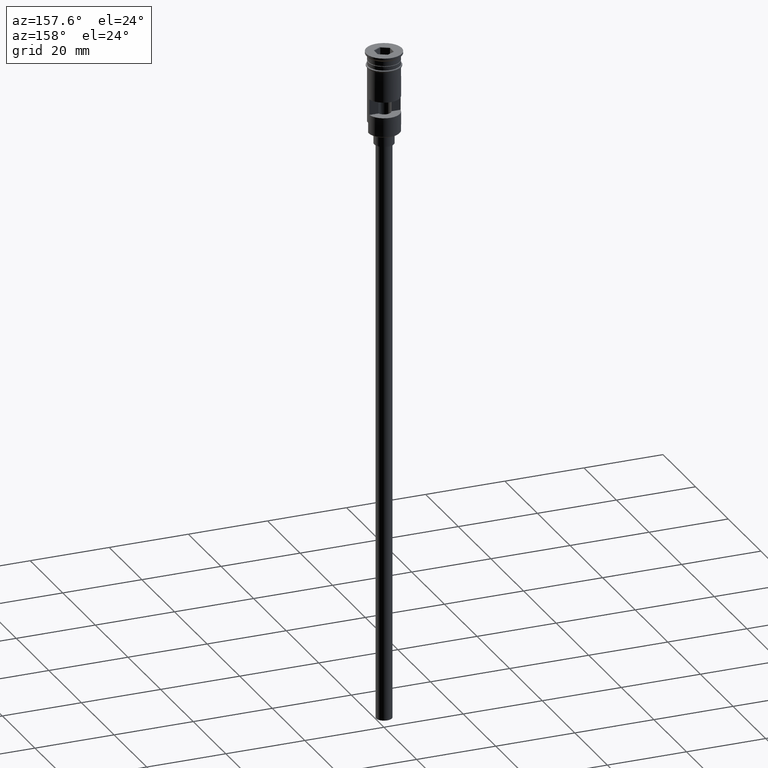
[diagram: clean part render]
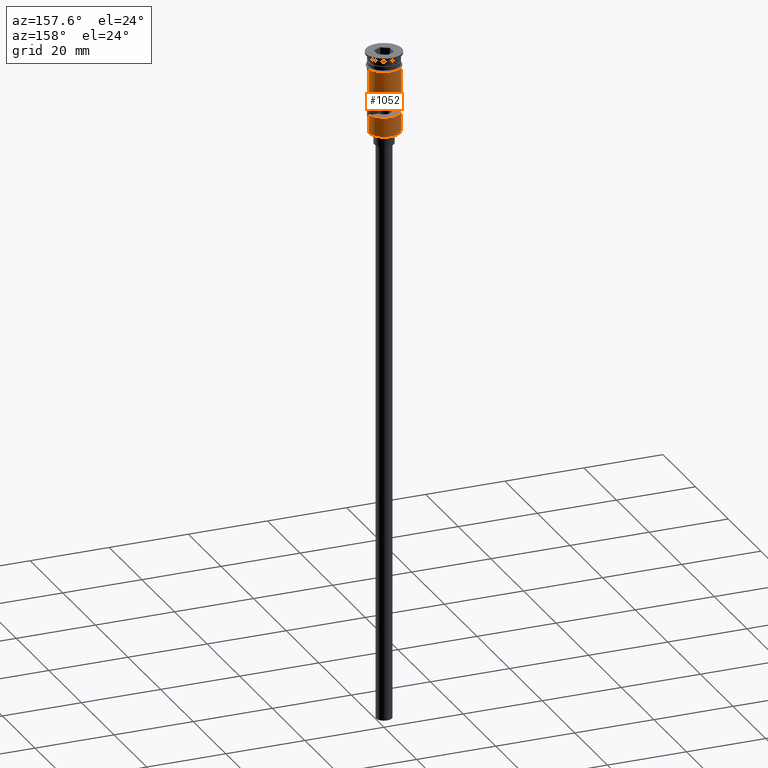
[diagram: same view with one face highlighted and labeled with its STEP entity id]
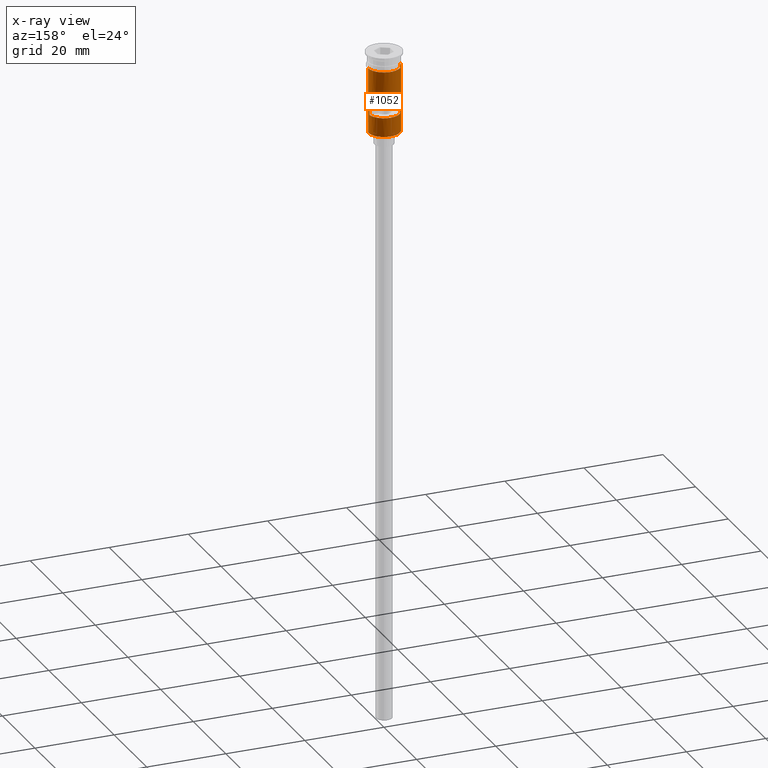
[diagram: x-ray of the same camera — body ghosted, the highlighted face saturated]
A machine part, auxiliary view. The second image highlights one B-rep face of the part: STEP entity #1052.
The next image is the same camera in x-ray: the body ghosted, the highlighted face saturated — about 0% of this face is hidden behind the body in this view.
In plain terms, the highlighted cylindrical surface (edge-blend (fillet) strip) has radius 4 mm, axis along (-0, -0, 1).
Its self-contained STEP definition (entity closure, byte-faithful):
#6 = EDGE_CURVE ( 'NONE', #646, #775, #202, .T. ) ;
#13 = AXIS2_PLACEMENT_3D ( 'NONE', #750, #24, #155 ) ;
#24 = DIRECTION ( 'NONE',  ( 0.000000000000000000, 0.000000000000000000, 1.000000000000000000 ) ) ;
#26 = VECTOR ( 'NONE', #54, 1000.000000000000000 ) ;
#54 = DIRECTION ( 'NONE',  ( -0.000000000000000000, -0.000000000000000000, 1.000000000000000000 ) ) ;
#64 = VECTOR ( 'NONE', #815, 1000.000000000000000 ) ;
#72 = CARTESIAN_POINT ( 'NONE',  ( 3.954743986657037524, 0.5999999999999996447, 0.000000000000000000 ) ) ;
#76 = VERTEX_POINT ( 'NONE', #1098 ) ;
#90 = CARTESIAN_POINT ( 'NONE',  ( 3.999999999999997335, 4.898587196589409870E-16, -20.29999999999997584 ) ) ;
#94 = AXIS2_PLACEMENT_3D ( 'NONE', #742, #725, #844 ) ;
#101 = CARTESIAN_POINT ( 'NONE',  ( -3.954743986657037524, 0.5999999999999996447, -15.50000000000000000 ) ) ;
#128 = ORIENTED_EDGE ( 'NONE', *, *, #6, .T. ) ;
#147 = EDGE_CURVE ( 'NONE', #629, #516, #701, .T. ) ;
#151 = CARTESIAN_POINT ( 'NONE',  ( -3.999999999999997335, 0.000000000000000000, -17.79999999999998295 ) ) ;
#155 = DIRECTION ( 'NONE',  ( -1.000000000000000000, 0.000000000000000000, 0.000000000000000000 ) ) ;
#191 = VERTEX_POINT ( 'NONE', #101 ) ;
#202 = LINE ( 'NONE', #233, #64 ) ;
#213 = FACE_BOUND ( 'NONE', #605, .T. ) ;
#233 = CARTESIAN_POINT ( 'NONE',  ( -4.000000000000000000, 4.898587196589412829E-16, 0.000000000000000000 ) ) ;
#276 = CARTESIAN_POINT ( 'NONE',  ( -4.000000000000000000, 4.898587196589412829E-16, -3.799999999999998490 ) ) ;
#293 = ORIENTED_EDGE ( 'NONE', *, *, #517, .F. ) ;
#301 = CARTESIAN_POINT ( 'NONE',  ( -3.999999999999997335, 0.000000000000000000, -20.49999999999999645 ) ) ;
#341 = EDGE_CURVE ( 'NONE', #629, #1296, #872, .T. ) ;
#370 = ORIENTED_EDGE ( 'NONE', *, *, #416, .T. ) ;
#384 = CIRCLE ( 'NONE', #94, 4.000000000000000000 ) ;
#416 = EDGE_CURVE ( 'NONE', #1296, #646, #1511, .T. ) ;
#441 = DIRECTION ( 'NONE',  ( 0.000000000000000000, 0.000000000000000000, -1.000000000000000000 ) ) ;
#460 = DIRECTION ( 'NONE',  ( -1.000000000000000000, 0.000000000000000000, 0.000000000000000000 ) ) ;
#516 = VERTEX_POINT ( 'NONE', #1354 ) ;
#517 = EDGE_CURVE ( 'NONE', #620, #775, #384, .T. ) ;
#564 = CARTESIAN_POINT ( 'NONE',  ( 0.000000000000000000, 0.000000000000000000, -11.50000000000000000 ) ) ;
#605 = EDGE_LOOP ( 'NONE', ( #906, #1124, #848, #1590 ) ) ;
#620 = VERTEX_POINT ( 'NONE', #961 ) ;
#629 = VERTEX_POINT ( 'NONE', #90 ) ;
#646 = VERTEX_POINT ( 'NONE', #151 ) ;
#688 = VECTOR ( 'NONE', #441, 1000.000000000000000 ) ;
#701 = LINE ( 'NONE', #1076, #1498 ) ;
#703 = CARTESIAN_POINT ( 'NONE',  ( 4.000000000000000000, 0.000000000000000000, 0.000000000000000000 ) ) ;
#725 = DIRECTION ( 'NONE',  ( -0.000000000000000000, -0.000000000000000000, 1.000000000000000000 ) ) ;
#742 = CARTESIAN_POINT ( 'NONE',  ( 0.000000000000000000, 0.000000000000000000, -3.799999999999998490 ) ) ;
#750 = CARTESIAN_POINT ( 'NONE',  ( 0.000000000000000000, 0.000000000000000000, -20.29999999999997584 ) ) ;
#769 = DIRECTION ( 'NONE',  ( -0.000000000000000000, -0.000000000000000000, 1.000000000000000000 ) ) ;
#775 = VERTEX_POINT ( 'NONE', #276 ) ;
#798 = DIRECTION ( 'NONE',  ( 1.000000000000000000, 0.000000000000000000, 0.000000000000000000 ) ) ;
#815 = DIRECTION ( 'NONE',  ( -0.000000000000000000, -0.000000000000000000, 1.000000000000000000 ) ) ;
#844 = DIRECTION ( 'NONE',  ( 1.000000000000000000, 0.000000000000000000, 0.000000000000000000 ) ) ;
#848 = ORIENTED_EDGE ( 'NONE', *, *, #1509, .F. ) ;
#872 = CIRCLE ( 'NONE', #13, 4.000000000000000000 ) ;
#906 = ORIENTED_EDGE ( 'NONE', *, *, #1522, .F. ) ;
#950 = LINE ( 'NONE', #703, #1352 ) ;
#956 = DIRECTION ( 'NONE',  ( -0.000000000000000000, -0.000000000000000000, 1.000000000000000000 ) ) ;
#959 = CIRCLE ( 'NONE', #1240, 4.000000000000000000 ) ;
#961 = CARTESIAN_POINT ( 'NONE',  ( 4.000000000000000000, 0.000000000000000000, -3.799999999999998490 ) ) ;
#983 = CARTESIAN_POINT ( 'NONE',  ( 3.954743986657038413, 0.5999999999999996447, -15.50000000000000000 ) ) ;
#1038 = LINE ( 'NONE', #72, #688 ) ;
#1039 = ORIENTED_EDGE ( 'NONE', *, *, #1191, .F. ) ;
#1041 = CARTESIAN_POINT ( 'NONE',  ( 0.000000000000000000, 0.000000000000000000, 0.000000000000000000 ) ) ;
#1052 = ADVANCED_FACE ( 'NONE', ( #213, #1259 ), #1520, .T. ) ;
#1076 = CARTESIAN_POINT ( 'NONE',  ( 3.999999999999997335, 4.898587196589409870E-16, -20.49999999999999645 ) ) ;
#1080 = EDGE_CURVE ( 'NONE', #1237, #76, #959, .T. ) ;
#1098 = CARTESIAN_POINT ( 'NONE',  ( 3.954743986657038413, 0.5999999999999996447, -11.50000000000000000 ) ) ;
#1120 = CIRCLE ( 'NONE', #1223, 4.000000000000000000 ) ;
#1124 = ORIENTED_EDGE ( 'NONE', *, *, #1080, .F. ) ;
#1125 = LINE ( 'NONE', #1152, #26 ) ;
#1152 = CARTESIAN_POINT ( 'NONE',  ( -3.954743986657037524, 0.5999999999999996447, 0.000000000000000000 ) ) ;
#1160 = EDGE_LOOP ( 'NONE', ( #370, #128, #293, #1039, #1340, #1387 ) ) ;
#1161 = DIRECTION ( 'NONE',  ( 1.000000000000000000, 0.000000000000000000, 0.000000000000000000 ) ) ;
#1188 = CARTESIAN_POINT ( 'NONE',  ( 0.000000000000000000, 0.000000000000000000, -15.50000000000000000 ) ) ;
#1191 = EDGE_CURVE ( 'NONE', #516, #620, #950, .T. ) ;
#1199 = CARTESIAN_POINT ( 'NONE',  ( -3.954743986657037524, 0.5999999999999996447, -11.50000000000000000 ) ) ;
#1209 = EDGE_CURVE ( 'NONE', #1388, #191, #1120, .T. ) ;
#1212 = DIRECTION ( 'NONE',  ( -0.000000000000000000, -0.000000000000000000, 1.000000000000000000 ) ) ;
#1217 = AXIS2_PLACEMENT_3D ( 'NONE', #1041, #769, #1161 ) ;
#1223 = AXIS2_PLACEMENT_3D ( 'NONE', #1188, #1298, #460 ) ;
#1237 = VERTEX_POINT ( 'NONE', #1199 ) ;
#1240 = AXIS2_PLACEMENT_3D ( 'NONE', #564, #1264, #798 ) ;
#1259 = FACE_OUTER_BOUND ( 'NONE', #1160, .T. ) ;
#1264 = DIRECTION ( 'NONE',  ( -0.000000000000000000, 0.000000000000000000, -1.000000000000000000 ) ) ;
#1296 = VERTEX_POINT ( 'NONE', #1338 ) ;
#1298 = DIRECTION ( 'NONE',  ( 0.000000000000000000, 0.000000000000000000, 1.000000000000000000 ) ) ;
#1338 = CARTESIAN_POINT ( 'NONE',  ( -3.999999999999997335, 0.000000000000000000, -20.29999999999997584 ) ) ;
#1340 = ORIENTED_EDGE ( 'NONE', *, *, #147, .F. ) ;
#1352 = VECTOR ( 'NONE', #956, 1000.000000000000000 ) ;
#1354 = CARTESIAN_POINT ( 'NONE',  ( 4.000000000000000000, 4.898587196589412829E-16, -17.79999999999998295 ) ) ;
#1387 = ORIENTED_EDGE ( 'NONE', *, *, #341, .T. ) ;
#1388 = VERTEX_POINT ( 'NONE', #983 ) ;
#1498 = VECTOR ( 'NONE', #1212, 1000.000000000000000 ) ;
#1499 = VECTOR ( 'NONE', #1541, 1000.000000000000000 ) ;
#1509 = EDGE_CURVE ( 'NONE', #191, #1237, #1125, .T. ) ;
#1511 = LINE ( 'NONE', #301, #1499 ) ;
#1520 = CYLINDRICAL_SURFACE ( 'NONE', #1217, 4.000000000000000000 ) ;
#1522 = EDGE_CURVE ( 'NONE', #76, #1388, #1038, .T. ) ;
#1541 = DIRECTION ( 'NONE',  ( -0.000000000000000000, -0.000000000000000000, 1.000000000000000000 ) ) ;
#1590 = ORIENTED_EDGE ( 'NONE', *, *, #1209, .F. ) ;